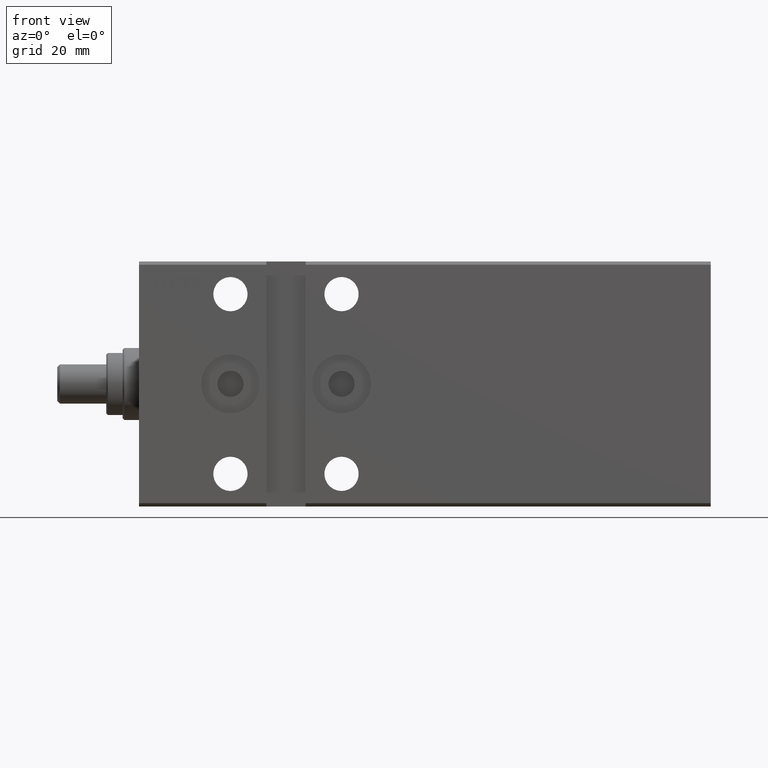
[diagram: clean part render]
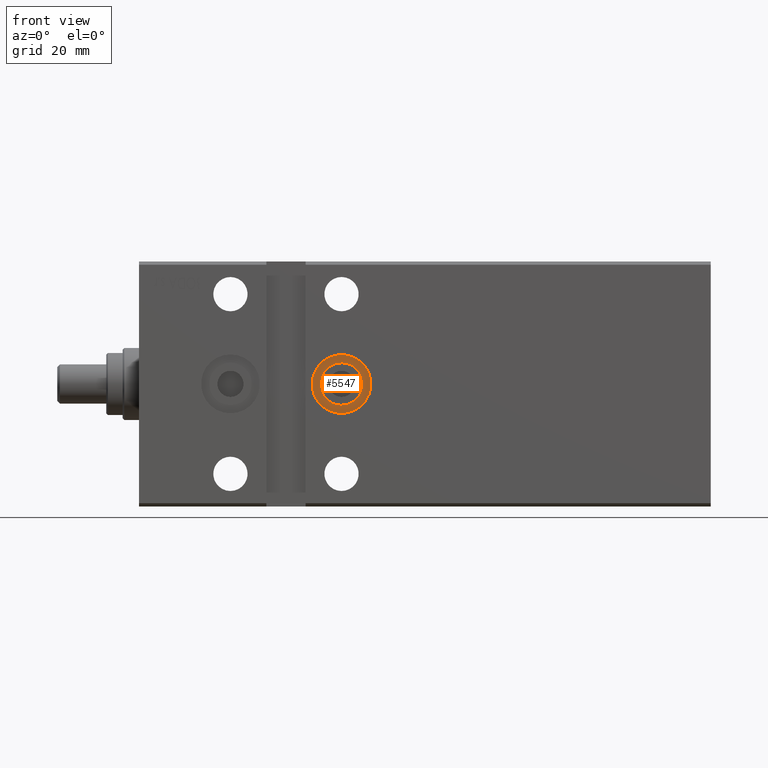
[diagram: same view with one face highlighted and labeled with its STEP entity id]
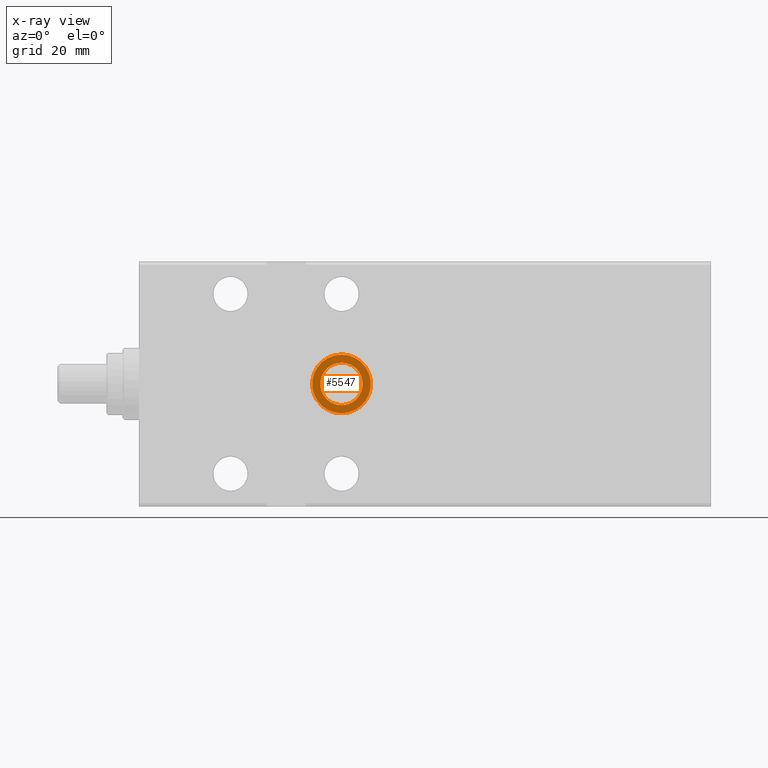
[diagram: x-ray of the same camera — body ghosted, the highlighted face saturated]
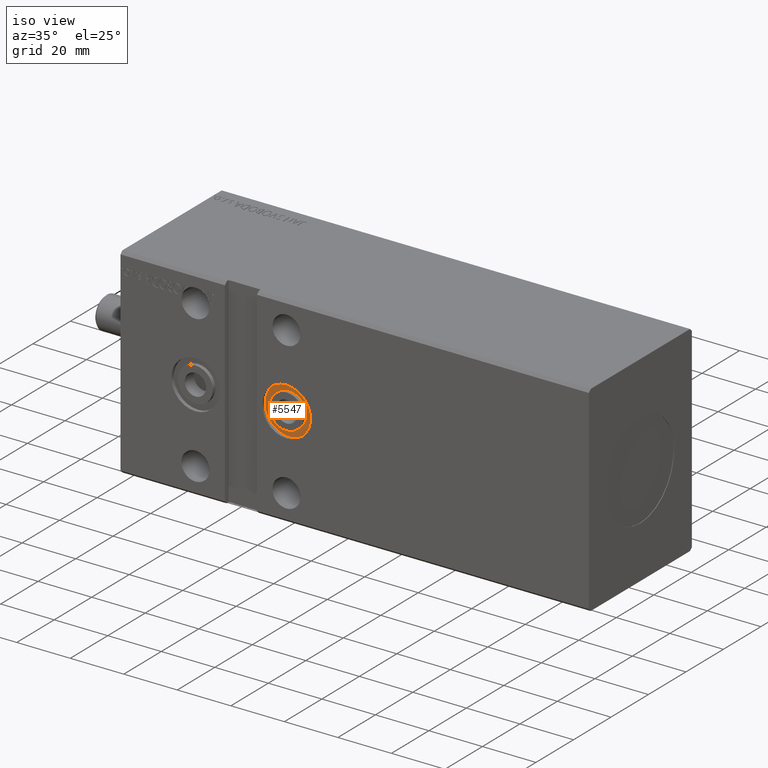
[diagram: same view with one face highlighted and labeled with its STEP entity id]
A machine part, front view. The second image highlights one B-rep face of the part: STEP entity #5547.
The next image is the same camera in x-ray: the body ghosted, the highlighted face saturated — about 0% of this face is hidden behind the body in this view.
A second angle (iso view) of the same face is appended — the face is thin or edge-on in the first view.
In plain terms, the highlighted planar face has unit normal (0, 1, 0).
Its self-contained STEP definition (entity closure, byte-faithful):
#259 = ORIENTED_EDGE ( 'NONE', *, *, #10906, .F. ) ;
#376 = AXIS2_PLACEMENT_3D ( 'NONE', #22601, #35740, #19345 ) ;
#1810 = DIRECTION ( 'NONE',  ( 0.000000000000000000, 0.000000000000000000, -1.000000000000000000 ) ) ;
#1890 = DIRECTION ( 'NONE',  ( 0.000000000000000000, 0.000000000000000000, 1.000000000000000000 ) ) ;
#2845 = AXIS2_PLACEMENT_3D ( 'NONE', #7884, #34199, #24504 ) ;
#3347 = ORIENTED_EDGE ( 'NONE', *, *, #34319, .T. ) ;
#3868 = CIRCLE ( 'NONE', #22499, 6.500000000000001776 ) ;
#4463 = CIRCLE ( 'NONE', #14809, 6.500000000000001776 ) ;
#4651 = EDGE_CURVE ( 'NONE', #24952, #15520, #5593, .T. ) ;
#5125 = DIRECTION ( 'NONE',  ( -0.000000000000000000, 1.000000000000000000, 5.507058653894625853E-17 ) ) ;
#5547 = ADVANCED_FACE ( 'NONE', ( #38339, #32299 ), #25608, .F. ) ;
#5593 = CIRCLE ( 'NONE', #23086, 8.999999999999996447 ) ;
#7884 = CARTESIAN_POINT ( 'NONE',  ( 62.00000000000000000, -26.10000000000000497, -4.004979406456146471E-15 ) ) ;
#8774 = DIRECTION ( 'NONE',  ( 0.000000000000000000, 0.000000000000000000, -1.000000000000000000 ) ) ;
#10906 = EDGE_CURVE ( 'NONE', #15520, #24952, #30359, .T. ) ;
#14743 = CARTESIAN_POINT ( 'NONE',  ( 62.00000000000000000, -26.10000000000000497, -4.004979406456146471E-15 ) ) ;
#14809 = AXIS2_PLACEMENT_3D ( 'NONE', #14743, #41050, #1810 ) ;
#15520 = VERTEX_POINT ( 'NONE', #35206 ) ;
#15657 = DIRECTION ( 'NONE',  ( -6.162975822039154730E-33, 1.000000000000000000, 8.079268127821993376E-17 ) ) ;
#16767 = CARTESIAN_POINT ( 'NONE',  ( 62.00000000000000000, -26.10000000000000497, 8.999999999999992895 ) ) ;
#19345 = DIRECTION ( 'NONE',  ( 0.000000000000000000, -5.507058653894625853E-17, 1.000000000000000000 ) ) ;
#21299 = CARTESIAN_POINT ( 'NONE',  ( 62.00000000000000000, -26.10000000000000497, 6.499999999999997335 ) ) ;
#22499 = AXIS2_PLACEMENT_3D ( 'NONE', #38320, #15657, #8774 ) ;
#22601 = CARTESIAN_POINT ( 'NONE',  ( 62.00000000000000000, -26.10000000000000497, -4.004979406456146471E-15 ) ) ;
#22610 = VERTEX_POINT ( 'NONE', #27639 ) ;
#23086 = AXIS2_PLACEMENT_3D ( 'NONE', #34673, #5125, #1890 ) ;
#24504 = DIRECTION ( 'NONE',  ( 0.000000000000000000, 0.000000000000000000, 1.000000000000000000 ) ) ;
#24952 = VERTEX_POINT ( 'NONE', #16767 ) ;
#25608 = PLANE ( 'NONE',  #376 ) ;
#26041 = EDGE_CURVE ( 'NONE', #34325, #22610, #4463, .T. ) ;
#27639 = CARTESIAN_POINT ( 'NONE',  ( 62.00000000000000000, -26.10000000000000497, -6.500000000000005329 ) ) ;
#29885 = EDGE_LOOP ( 'NONE', ( #3347, #42533 ) ) ;
#30359 = CIRCLE ( 'NONE', #2845, 8.999999999999996447 ) ;
#32299 = FACE_BOUND ( 'NONE', #29885, .T. ) ;
#33885 = EDGE_LOOP ( 'NONE', ( #259, #38291 ) ) ;
#34199 = DIRECTION ( 'NONE',  ( -0.000000000000000000, 1.000000000000000000, 5.507058653894625853E-17 ) ) ;
#34319 = EDGE_CURVE ( 'NONE', #22610, #34325, #3868, .T. ) ;
#34325 = VERTEX_POINT ( 'NONE', #21299 ) ;
#34673 = CARTESIAN_POINT ( 'NONE',  ( 62.00000000000000000, -26.10000000000000497, -4.004979406456146471E-15 ) ) ;
#35206 = CARTESIAN_POINT ( 'NONE',  ( 62.00000000000000000, -26.10000000000000497, -9.000000000000000000 ) ) ;
#35740 = DIRECTION ( 'NONE',  ( -0.000000000000000000, 1.000000000000000000, 5.507058653894625853E-17 ) ) ;
#38291 = ORIENTED_EDGE ( 'NONE', *, *, #4651, .F. ) ;
#38320 = CARTESIAN_POINT ( 'NONE',  ( 62.00000000000000000, -26.10000000000000497, -4.004979406456146471E-15 ) ) ;
#38339 = FACE_OUTER_BOUND ( 'NONE', #33885, .T. ) ;
#41050 = DIRECTION ( 'NONE',  ( -6.162975822039154730E-33, 1.000000000000000000, 8.079268127821993376E-17 ) ) ;
#42533 = ORIENTED_EDGE ( 'NONE', *, *, #26041, .T. ) ;